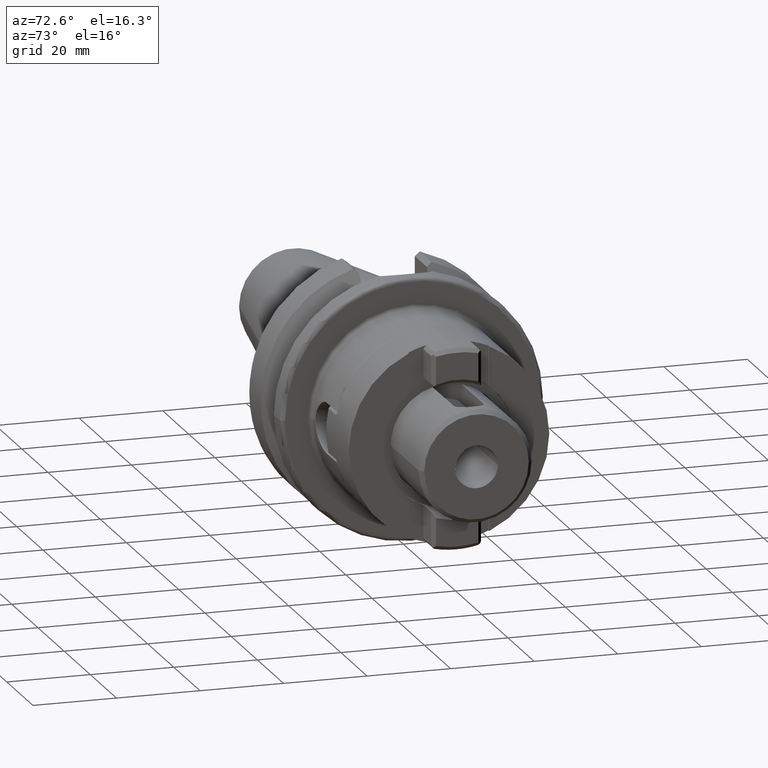
[diagram: clean part render]
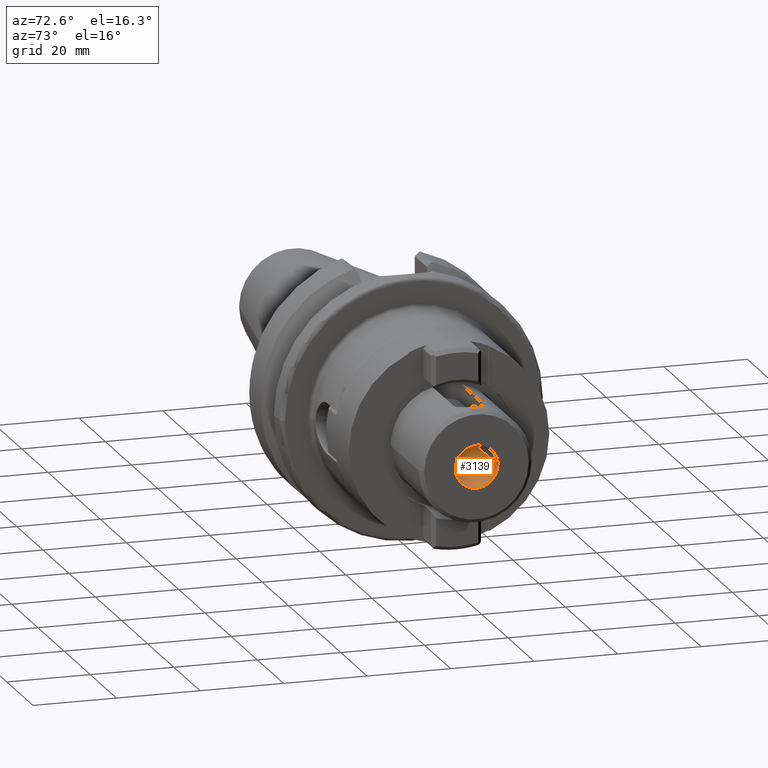
[diagram: same view with one face highlighted and labeled with its STEP entity id]
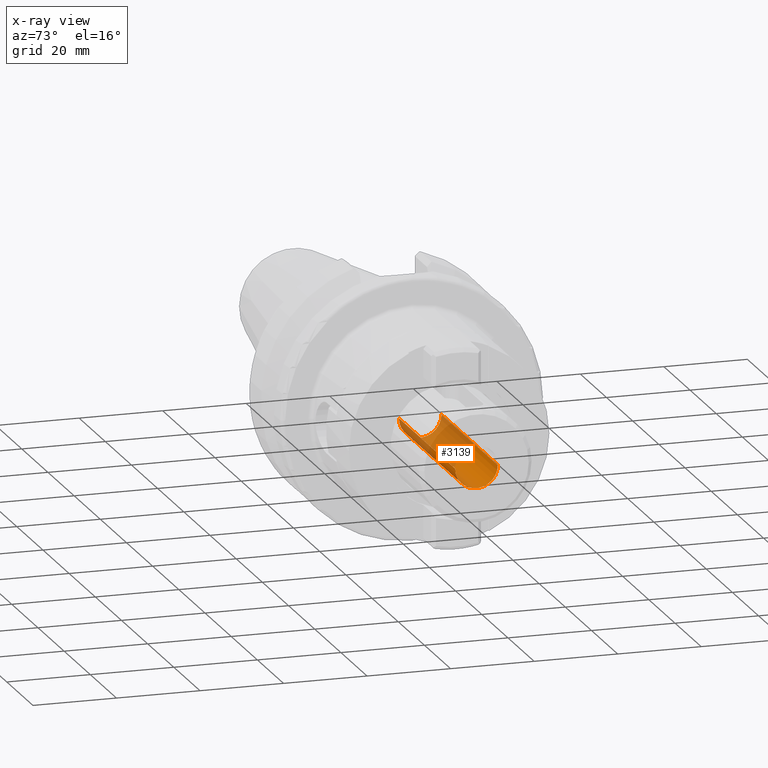
[diagram: x-ray of the same camera — body ghosted, the highlighted face saturated]
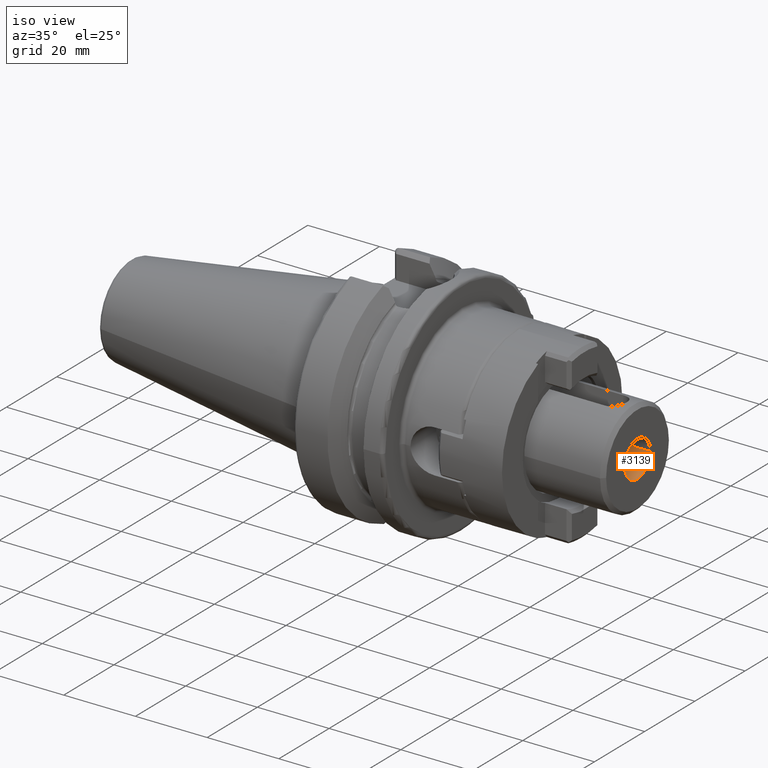
[diagram: same view with one face highlighted and labeled with its STEP entity id]
A machine part, auxiliary view. The second image highlights one B-rep face of the part: STEP entity #3139.
The next image is the same camera in x-ray: the body ghosted, the highlighted face saturated — about 50% of this face is hidden behind the body in this view.
A second angle (iso view) of the same face is appended — the face is thin or edge-on in the first view.
In plain terms, the highlighted cylindrical surface (edge-blend (fillet) strip) has radius 5.1 mm, axis along (1, 0, 0).
Its self-contained STEP definition (entity closure, byte-faithful):
#1095=CARTESIAN_POINT('',(7.6E1,0.E0,0.E0));
#1096=DIRECTION('',(1.E0,0.E0,0.E0));
#1097=DIRECTION('',(0.E0,-1.E0,0.E0));
#1098=AXIS2_PLACEMENT_3D('',#1095,#1096,#1097);
#1105=CARTESIAN_POINT('',(3.29E1,0.E0,0.E0));
#1106=DIRECTION('',(1.E0,0.E0,0.E0));
#1107=DIRECTION('',(0.E0,-1.E0,0.E0));
#1108=AXIS2_PLACEMENT_3D('',#1105,#1106,#1107);
#1110=DIRECTION('',(1.E0,0.E0,0.E0));
#1111=VECTOR('',#1110,4.31E1);
#1112=CARTESIAN_POINT('',(3.29E1,5.1E0,0.E0));
#1113=LINE('',#1112,#1111);
#1119=DIRECTION('',(1.E0,0.E0,0.E0));
#1120=VECTOR('',#1119,4.31E1);
#1121=CARTESIAN_POINT('',(3.29E1,-5.1E0,0.E0));
#1122=LINE('',#1121,#1120);
#1698=CARTESIAN_POINT('',(3.29E1,-5.1E0,0.E0));
#1700=VERTEX_POINT('',#1698);
#1701=CARTESIAN_POINT('',(3.29E1,5.1E0,0.E0));
#1702=VERTEX_POINT('',#1701);
#1703=CARTESIAN_POINT('',(7.6E1,-5.1E0,0.E0));
#1704=CARTESIAN_POINT('',(7.6E1,5.1E0,0.E0));
#1705=VERTEX_POINT('',#1703);
#1706=VERTEX_POINT('',#1704);
#3125=CARTESIAN_POINT('',(2.752739138511E1,0.E0,0.E0));
#3126=DIRECTION('',(1.E0,0.E0,0.E0));
#3127=DIRECTION('',(0.E0,-1.E0,0.E0));
#3128=AXIS2_PLACEMENT_3D('',#3125,#3126,#3127);
#3129=CYLINDRICAL_SURFACE('',#3128,5.1E0);
#3130=ORIENTED_EDGE('',*,*,#3118,.F.);
#3132=ORIENTED_EDGE('',*,*,#3131,.F.);
#3134=ORIENTED_EDGE('',*,*,#3133,.T.);
#3136=ORIENTED_EDGE('',*,*,#3135,.T.);
#3137=EDGE_LOOP('',(#3130,#3132,#3134,#3136));
#3138=FACE_OUTER_BOUND('',#3137,.F.);
#3139=ADVANCED_FACE('',(#3138),#3129,.F.);
#1099=CIRCLE('',#1098,5.1E0);
#1109=CIRCLE('',#1108,5.1E0);
#3118=EDGE_CURVE('',#1705,#1706,#1099,.T.);
#3131=EDGE_CURVE('',#1700,#1705,#1122,.T.);
#3133=EDGE_CURVE('',#1700,#1702,#1109,.T.);
#3135=EDGE_CURVE('',#1702,#1706,#1113,.T.);